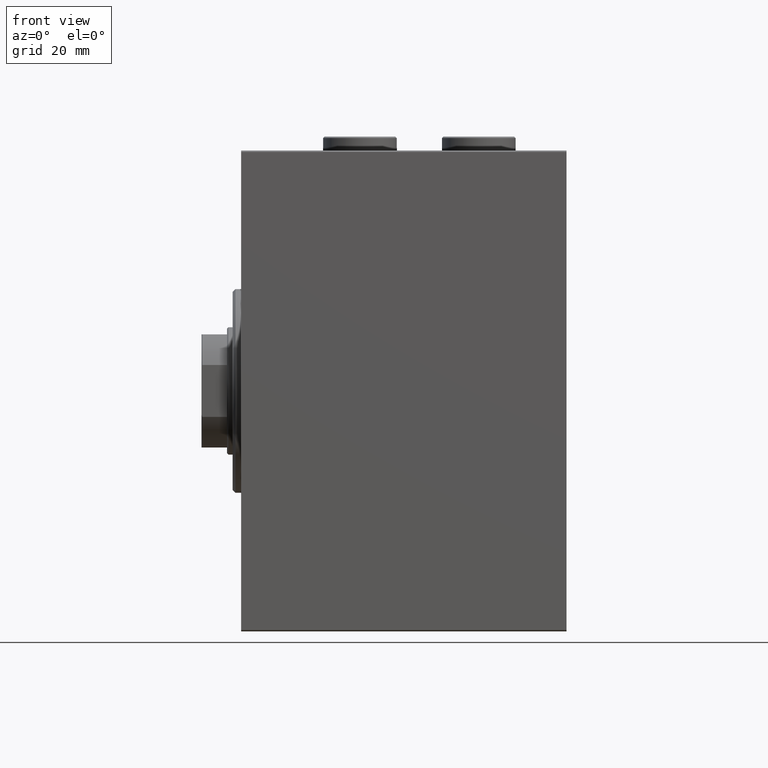
[diagram: clean part render]
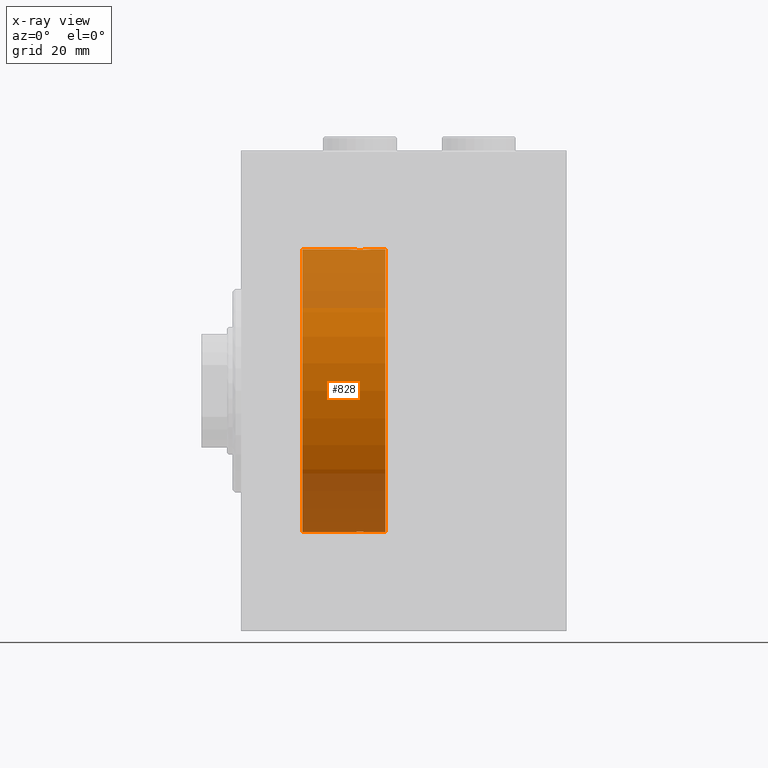
[diagram: x-ray — body ghosted, one internal face saturated and labeled with its STEP entity id]
A machine part, front view, then the same camera in x-ray: the body is ghosted and one INTERNAL B-rep face — a face not visible from any outside direction — is saturated and labeled: STEP entity #828.
In plain terms, the highlighted cylindrical surface (partial cylindrical patch) has radius 50 mm, axis along (-1, -0, -0).
Its self-contained STEP definition (entity closure, byte-faithful):
#157 = LINE ( 'NONE', #14197, #31017 ) ;
#183 = DIRECTION ( 'NONE',  ( -1.000000000000000000, -0.000000000000000000, -0.000000000000000000 ) ) ;
#341 = CARTESIAN_POINT ( 'NONE',  ( 44.58820214676201488, -3.382416624899787561, 49.88570010427956447 ) ) ;
#365 = CARTESIAN_POINT ( 'NONE',  ( 37.77757364479220570, -0.5587117664567219366, -49.99763378604802000 ) ) ;
#484 = VERTEX_POINT ( 'NONE', #9980 ) ;
#577 = CARTESIAN_POINT ( 'NONE',  ( 40.89676703965783844, -4.113647494206490229, 49.83052139214891696 ) ) ;
#828 = ADVANCED_FACE ( 'NONE', ( #14444 ), #32381, .F. ) ;
#3575 = CARTESIAN_POINT ( 'NONE',  ( 44.80697831839309941, -3.203153387937325736, 49.89767833571684719 ) ) ;
#3589 = LINE ( 'NONE', #39009, #34452 ) ;
#3597 = CARTESIAN_POINT ( 'NONE',  ( 37.96920203844656783, -1.375411031076042789, -49.98173289062309976 ) ) ;
#3799 = CARTESIAN_POINT ( 'NONE',  ( 45.19921927961282648, -2.811461347331111416, 49.92127983148852621 ) ) ;
#3821 = CARTESIAN_POINT ( 'NONE',  ( 46.25000000000000000, 6.123233970928975205E-15, -50.00000000000000000 ) ) ;
#4028 = CARTESIAN_POINT ( 'NONE',  ( 39.18846933484581285, -3.199146701881677934, 49.89793607725460589 ) ) ;
#4485 = CARTESIAN_POINT ( 'NONE',  ( 46.22242635520780851, -0.5587117664567147202, 49.99763378604802000 ) ) ;
#5220 = DIRECTION ( 'NONE',  ( -1.000000000000000000, 0.000000000000000000, 0.000000000000000000 ) ) ;
#5444 = DIRECTION ( 'NONE',  ( 0.000000000000000000, 0.000000000000000000, 1.000000000000000000 ) ) ;
#5500 = EDGE_LOOP ( 'NONE', ( #31443, #40548, #36450, #32676, #19102, #25833, #43127, #10696 ) ) ;
#6381 = CARTESIAN_POINT ( 'NONE',  ( 40.63289352445426772, -4.033756670430848068, -49.83713703490974467 ) ) ;
#6826 = CARTESIAN_POINT ( 'NONE',  ( 39.41179785323799933, -3.382416624899781787, -49.88570010427956447 ) ) ;
#7021 = CARTESIAN_POINT ( 'NONE',  ( 40.62666563420963683, -4.031616700143192844, 49.83731072121799599 ) ) ;
#7047 = CARTESIAN_POINT ( 'NONE',  ( 39.19302168160691480, -3.203153387937319962, -49.89767833571684719 ) ) ;
#7249 = CARTESIAN_POINT ( 'NONE',  ( 46.25000000000000000, -8.399120439301708033E-16, 50.00000000000000000 ) ) ;
#7624 = DIRECTION ( 'NONE',  ( 0.000000000000000000, 0.000000000000000000, 1.000000000000000000 ) ) ;
#7710 = CARTESIAN_POINT ( 'NONE',  ( 45.68602832121950286, -2.133925816755187110, 49.95498245321557818 ) ) ;
#7857 = CARTESIAN_POINT ( 'NONE',  ( 21.60000000000000142, 0.000000000000000000, 0.000000000000000000 ) ) ;
#7942 = CARTESIAN_POINT ( 'NONE',  ( 41.71604712973302753, -4.249777379711412451, 49.81906655360197789 ) ) ;
#8066 = EDGE_CURVE ( 'NONE', #25860, #16417, #3589, .T. ) ;
#9833 = CARTESIAN_POINT ( 'NONE',  ( 45.37881717263736192, -2.593114840406122390, -49.93325460257641168 ) ) ;
#9980 = CARTESIAN_POINT ( 'NONE',  ( 21.60000000000000142, 0.000000000000000000, 50.00000000000000000 ) ) ;
#10167 = EDGE_CURVE ( 'NONE', #15465, #16417, #36601, .T. ) ;
#10286 = CARTESIAN_POINT ( 'NONE',  ( 42.55997867695648296, -4.222042462213118519, -49.82145436824653473 ) ) ;
#10696 = ORIENTED_EDGE ( 'NONE', *, *, #8066, .F. ) ;
#10701 = CARTESIAN_POINT ( 'NONE',  ( 46.25000000000000711, -0.2808785465865644704, 50.00000000000001421 ) ) ;
#10797 = CARTESIAN_POINT ( 'NONE',  ( 21.60000000000000142, 6.123233995736766085E-15, -50.00000000000000000 ) ) ;
#10928 = CARTESIAN_POINT ( 'NONE',  ( 38.79696438048009099, -2.807099414226282175, 49.92152599098507437 ) ) ;
#11023 = LINE ( 'NONE', #17921, #14886 ) ;
#11154 = CARTESIAN_POINT ( 'NONE',  ( 37.75000000000000711, -2.480809774739037926E-23, 50.00000000000000000 ) ) ;
#11383 = CARTESIAN_POINT ( 'NONE',  ( 42.55408564880149669, -4.222816005855214883, 49.82138837911247009 ) ) ;
#11399 = VECTOR ( 'NONE', #183, 1000.000000000000000 ) ;
#11615 = CARTESIAN_POINT ( 'NONE',  ( 37.77689247201000455, -0.5531336717329051744, 49.99769193709643389 ) ) ;
#12775 = CIRCLE ( 'NONE', #28189, 50.00000000000000000 ) ;
#13283 = CARTESIAN_POINT ( 'NONE',  ( 46.25000000000000000, -0.2773743941468464480, -50.00000000000000711 ) ) ;
#13505 = CARTESIAN_POINT ( 'NONE',  ( 41.72275072962083442, -4.250219976861640880, -49.81902879621014080 ) ) ;
#13778 = CARTESIAN_POINT ( 'NONE',  ( 51.00000000000000711, 6.123233995736766085E-15, -50.00000000000000000 ) ) ;
#14153 = CARTESIAN_POINT ( 'NONE',  ( 43.88217049484444487, -3.820681512513388611, 49.85392475515401145 ) ) ;
#14197 = CARTESIAN_POINT ( 'NONE',  ( 51.00000000000000711, 6.123233995736766085E-15, -50.00000000000000000 ) ) ;
#14444 = FACE_OUTER_BOUND ( 'NONE', #5500, .T. ) ;
#14675 = DIRECTION ( 'NONE',  ( -1.000000000000000000, -0.000000000000000000, -0.000000000000000000 ) ) ;
#14886 = VECTOR ( 'NONE', #25512, 1000.000000000000000 ) ;
#14899 = DIRECTION ( 'NONE',  ( 0.000000000000000000, 0.000000000000000000, 1.000000000000000000 ) ) ;
#15046 = VERTEX_POINT ( 'NONE', #13778 ) ;
#15465 = VERTEX_POINT ( 'NONE', #35329 ) ;
#15718 = CARTESIAN_POINT ( 'NONE',  ( 37.75000000000001421, -0.2808785465865695774, -50.00000000000001421 ) ) ;
#16417 = VERTEX_POINT ( 'NONE', #23690 ) ;
#16967 = CARTESIAN_POINT ( 'NONE',  ( 46.03272642097311973, -1.369753890039645983, -49.98188917176553048 ) ) ;
#17186 = CARTESIAN_POINT ( 'NONE',  ( 43.88744739392799943, -3.818052230167712668, -49.85412671291930309 ) ) ;
#17411 = CARTESIAN_POINT ( 'NONE',  ( 38.31397167878049714, -2.133925816755183114, -49.95498245321557818 ) ) ;
#17610 = CARTESIAN_POINT ( 'NONE',  ( 38.17899418014773971, -1.881229021238129517, 49.96525240872482954 ) ) ;
#17625 = DIRECTION ( 'NONE',  ( -1.000000000000000000, -0.000000000000000000, -0.000000000000000000 ) ) ;
#17921 = CARTESIAN_POINT ( 'NONE',  ( 51.00000000000000711, 0.000000000000000000, 50.00000000000000000 ) ) ;
#19084 = EDGE_CURVE ( 'NONE', #15046, #25464, #157, .T. ) ;
#19102 = ORIENTED_EDGE ( 'NONE', *, *, #35638, .T. ) ;
#19439 = CIRCLE ( 'NONE', #25312, 50.00000000000000000 ) ;
#19768 = EDGE_CURVE ( 'NONE', #15465, #484, #11023, .T. ) ;
#20414 = CARTESIAN_POINT ( 'NONE',  ( 40.11782950515556934, -3.820681512513381506, -49.85392475515401145 ) ) ;
#20851 = CARTESIAN_POINT ( 'NONE',  ( 38.80078072038717352, -2.811461347331107419, -49.92127983148852621 ) ) ;
#21053 = CARTESIAN_POINT ( 'NONE',  ( 42.27724927037917979, -4.250219976861652427, 49.81902879621013369 ) ) ;
#21076 = CARTESIAN_POINT ( 'NONE',  ( 38.62480015918034582, -2.597781786597465725, -49.93300953359122474 ) ) ;
#21968 = CARTESIAN_POINT ( 'NONE',  ( 45.81839248987871827, -1.886522330773423128, 49.96505190380066352 ) ) ;
#23690 = CARTESIAN_POINT ( 'NONE',  ( 46.25000000000000000, -8.399120439301708033E-16, 50.00000000000000000 ) ) ;
#23860 = CARTESIAN_POINT ( 'NONE',  ( 42.28395287026698668, -4.249777379711400904, -49.81906655360197789 ) ) ;
#24084 = CARTESIAN_POINT ( 'NONE',  ( 44.81153066515419425, -3.199146701881665500, -49.89793607725460589 ) ) ;
#24530 = VERTEX_POINT ( 'NONE', #44046 ) ;
#24731 = CARTESIAN_POINT ( 'NONE',  ( 37.88568086693992143, -1.101350136471744623, 49.98862054280448319 ) ) ;
#24809 = CARTESIAN_POINT ( 'NONE',  ( 51.00000000000000711, 6.123233995736766085E-15, -50.00000000000000000 ) ) ;
#25190 = CARTESIAN_POINT ( 'NONE',  ( 37.96727357902688738, -1.369753890039655753, 49.98188917176553048 ) ) ;
#25312 = AXIS2_PLACEMENT_3D ( 'NONE', #43445, #5220, #5444 ) ;
#25424 = CARTESIAN_POINT ( 'NONE',  ( 43.36710647554575360, -4.033756670430856062, 49.83713703490974467 ) ) ;
#25464 = VERTEX_POINT ( 'NONE', #38499 ) ;
#25512 = DIRECTION ( 'NONE',  ( -1.000000000000000000, -0.000000000000000000, -0.000000000000000000 ) ) ;
#25650 = CARTESIAN_POINT ( 'NONE',  ( 39.86863600553844122, -3.687400765141535253, 49.86408552998298660 ) ) ;
#25833 = ORIENTED_EDGE ( 'NONE', *, *, #19768, .F. ) ;
#25860 = VERTEX_POINT ( 'NONE', #25900 ) ;
#25900 = CARTESIAN_POINT ( 'NONE',  ( 51.00000000000000711, 0.000000000000000000, 50.00000000000000000 ) ) ;
#27212 = EDGE_CURVE ( 'NONE', #24530, #34904, #42075, .T. ) ;
#27313 = CARTESIAN_POINT ( 'NONE',  ( 46.22310752799000966, -0.5531336717328987351, -49.99769193709643389 ) ) ;
#27762 = CARTESIAN_POINT ( 'NONE',  ( 46.11431913306007857, -1.101350136471736629, -49.98862054280448319 ) ) ;
#27980 = CARTESIAN_POINT ( 'NONE',  ( 38.18160751012128884, -1.886522330773416911, -49.96505190380066352 ) ) ;
#28177 = CARTESIAN_POINT ( 'NONE',  ( 46.03079796155342507, -1.375411031076047008, 49.98173289062309976 ) ) ;
#28189 = AXIS2_PLACEMENT_3D ( 'NONE', #7857, #39142, #7624 ) ;
#28639 = CARTESIAN_POINT ( 'NONE',  ( 37.75000000000001421, -0.2773743941468522767, 50.00000000000000711 ) ) ;
#29227 = AXIS2_PLACEMENT_3D ( 'NONE', #39522, #14675, #14899 ) ;
#30992 = CARTESIAN_POINT ( 'NONE',  ( 44.59312720885956338, -3.378657745070617224, -49.88595615988430154 ) ) ;
#31017 = VECTOR ( 'NONE', #31676, 1000.000000000000000 ) ;
#31439 = CARTESIAN_POINT ( 'NONE',  ( 44.13136399446156588, -3.687400765141522818, -49.86408552998298660 ) ) ;
#31443 = ORIENTED_EDGE ( 'NONE', *, *, #38237, .F. ) ;
#31633 = CARTESIAN_POINT ( 'NONE',  ( 38.31062844320614147, -2.128188802142370051, 49.95522967821975158 ) ) ;
#31676 = DIRECTION ( 'NONE',  ( -1.000000000000000000, -0.000000000000000000, -0.000000000000000000 ) ) ;
#32381 = CYLINDRICAL_SURFACE ( 'NONE', #29227, 50.00000000000000000 ) ;
#32539 = CARTESIAN_POINT ( 'NONE',  ( 41.44002132304353125, -4.222042462213131842, 49.82145436824653473 ) ) ;
#32676 = ORIENTED_EDGE ( 'NONE', *, *, #27212, .T. ) ;
#33441 = EDGE_CURVE ( 'NONE', #25464, #24530, #36339, .T. ) ;
#34452 = VECTOR ( 'NONE', #17625, 1000.000000000000000 ) ;
#34670 = CARTESIAN_POINT ( 'NONE',  ( 45.20303561951990901, -2.807099414226270184, -49.92152599098507437 ) ) ;
#34904 = VERTEX_POINT ( 'NONE', #10797 ) ;
#35329 = CARTESIAN_POINT ( 'NONE',  ( 37.75000000000000711, -2.480809774739037926E-23, 50.00000000000000000 ) ) ;
#35540 = CARTESIAN_POINT ( 'NONE',  ( 40.11255260607201478, -3.818052230167724215, 49.85412671291930309 ) ) ;
#35638 = EDGE_CURVE ( 'NONE', #34904, #484, #12775, .T. ) ;
#36339 = B_SPLINE_CURVE_WITH_KNOTS ( 'NONE', 3,
 ( #3821, #13283, #27313, #27762, #16967, #38561, #41357, #9833, #34670, #24084, #30992, #31439, #17186, #45029, #41807, #10286, #23860, #13505, #37898, #45471, #6381, #20414, #38341, #6826, #7047, #20851, #21076, #17411, #27980, #3597, #43353, #365, #15718, #39870 ),
 .UNSPECIFIED., .F., .F.,
 ( 4, 2, 2, 2, 2, 2, 2, 2, 2, 2, 2, 2, 2, 2, 2, 2, 4 ),
 ( 0.01329343152928756308, 0.01412407817529634686, 0.01495472482130513064, 0.01578537146731391269, 0.01661601811332269821, 0.01744666475933148025, 0.01827731140534026577, 0.01910795805134904782, 0.01993860469735782986, 0.02076925134336661538, 0.02159989798937540090, 0.02243054463538418294, 0.02326119128139296499, 0.02409183792740175051, 0.02492248457341053255, 0.02575313121941931460, 0.02658377786542810012 ),
 .UNSPECIFIED. ) ;
#36450 = ORIENTED_EDGE ( 'NONE', *, *, #33441, .T. ) ;
#36601 = B_SPLINE_CURVE_WITH_KNOTS ( 'NONE', 3,
 ( #11154, #28639, #11615, #24731, #25190, #17610, #31633, #42226, #10928, #4028, #42923, #25650, #35540, #7021, #577, #32539, #7942, #21053, #11383, #39227, #25424, #14153, #42689, #341, #3575, #3799, #38995, #7710, #21968, #28177, #38768, #4485, #10701, #7249 ),
 .UNSPECIFIED., .F., .F.,
 ( 4, 2, 2, 2, 2, 2, 2, 2, 2, 2, 2, 2, 2, 2, 2, 2, 4 ),
 ( 0.01329343152928753012, 0.01412407817529631390, 0.01495472482130509768, 0.01578537146731388147, 0.01661601811332266698, 0.01744666475933144903, 0.01827731140534023455, 0.01910795805134901659, 0.01993860469735780211, 0.02076925134336658416, 0.02159989798937536967, 0.02243054463538415172, 0.02326119128139293724, 0.02409183792740172275, 0.02492248457341050480, 0.02575313121941928685, 0.02658377786542807236 ),
 .UNSPECIFIED. ) ;
#37898 = CARTESIAN_POINT ( 'NONE',  ( 41.44591435119853173, -4.222816005855206001, -49.82138837911246299 ) ) ;
#38237 = EDGE_CURVE ( 'NONE', #15046, #25860, #19439, .T. ) ;
#38341 = CARTESIAN_POINT ( 'NONE',  ( 39.87368355124922203, -3.690299572754720980, -49.86386974736159772 ) ) ;
#38499 = CARTESIAN_POINT ( 'NONE',  ( 46.25000000000000000, 6.123233970928975205E-15, -50.00000000000000000 ) ) ;
#38561 = CARTESIAN_POINT ( 'NONE',  ( 45.82100581985226739, -1.881229021238118859, -49.96525240872482954 ) ) ;
#38768 = CARTESIAN_POINT ( 'NONE',  ( 46.11249701080335228, -1.108337267831492889, 49.98846998601261760 ) ) ;
#38995 = CARTESIAN_POINT ( 'NONE',  ( 45.37519984081967550, -2.597781786597471942, 49.93300953359122474 ) ) ;
#39009 = CARTESIAN_POINT ( 'NONE',  ( 51.00000000000000711, 0.000000000000000000, 50.00000000000000000 ) ) ;
#39142 = DIRECTION ( 'NONE',  ( -1.000000000000000000, 0.000000000000000000, 0.000000000000000000 ) ) ;
#39227 = CARTESIAN_POINT ( 'NONE',  ( 43.09737617879038396, -4.115209769591117173, 49.83039196709102470 ) ) ;
#39522 = CARTESIAN_POINT ( 'NONE',  ( 51.00000000000000711, 0.000000000000000000, 0.000000000000000000 ) ) ;
#39870 = CARTESIAN_POINT ( 'NONE',  ( 37.75000000000000711, -7.073857814331912646E-15, -50.00000000000000000 ) ) ;
#40548 = ORIENTED_EDGE ( 'NONE', *, *, #19084, .T. ) ;
#41357 = CARTESIAN_POINT ( 'NONE',  ( 45.68937155679385853, -2.128188802142358949, -49.95522967821975158 ) ) ;
#41807 = CARTESIAN_POINT ( 'NONE',  ( 43.10323296034216156, -4.113647494206476907, -49.83052139214892406 ) ) ;
#42075 = LINE ( 'NONE', #24809, #11399 ) ;
#42226 = CARTESIAN_POINT ( 'NONE',  ( 38.62118282736263097, -2.593114840406134380, 49.93325460257641168 ) ) ;
#42689 = CARTESIAN_POINT ( 'NONE',  ( 44.12631644875079928, -3.690299572754728530, 49.86386974736159772 ) ) ;
#42923 = CARTESIAN_POINT ( 'NONE',  ( 39.40687279114045083, -3.378657745070629659, 49.88595615988430154 ) ) ;
#43127 = ORIENTED_EDGE ( 'NONE', *, *, #10167, .T. ) ;
#43353 = CARTESIAN_POINT ( 'NONE',  ( 37.88750298919666903, -1.108337267831496886, -49.98846998601261760 ) ) ;
#43445 = CARTESIAN_POINT ( 'NONE',  ( 51.00000000000000711, 0.000000000000000000, 0.000000000000000000 ) ) ;
#44046 = CARTESIAN_POINT ( 'NONE',  ( 37.75000000000000711, -7.073857814331912646E-15, -50.00000000000000000 ) ) ;
#45029 = CARTESIAN_POINT ( 'NONE',  ( 43.37333436579036317, -4.031616700143180410, -49.83731072121798888 ) ) ;
#45471 = CARTESIAN_POINT ( 'NONE',  ( 40.90262382120964446, -4.115209769591110067, -49.83039196709102470 ) ) ;